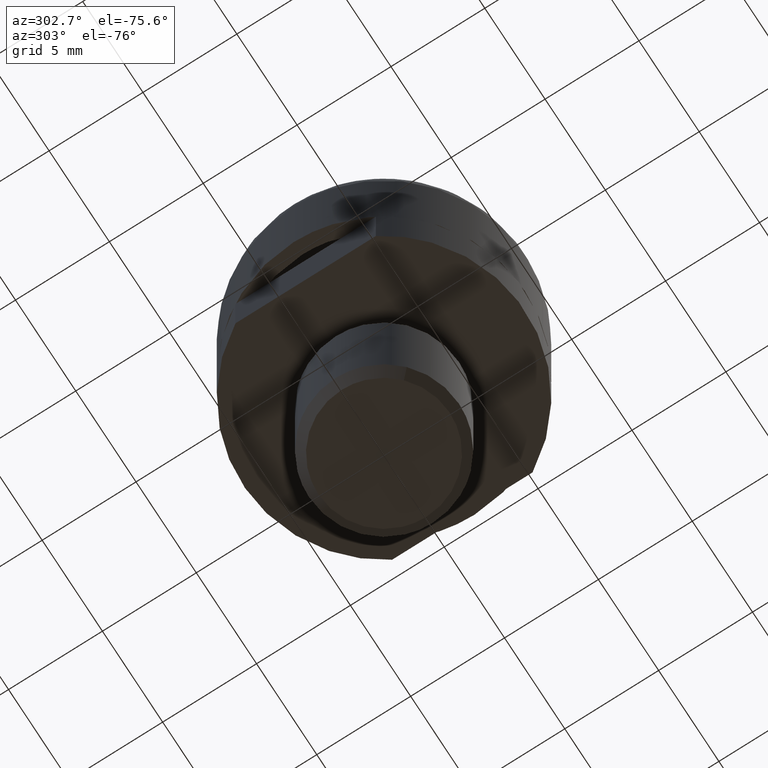
[diagram: clean part render]
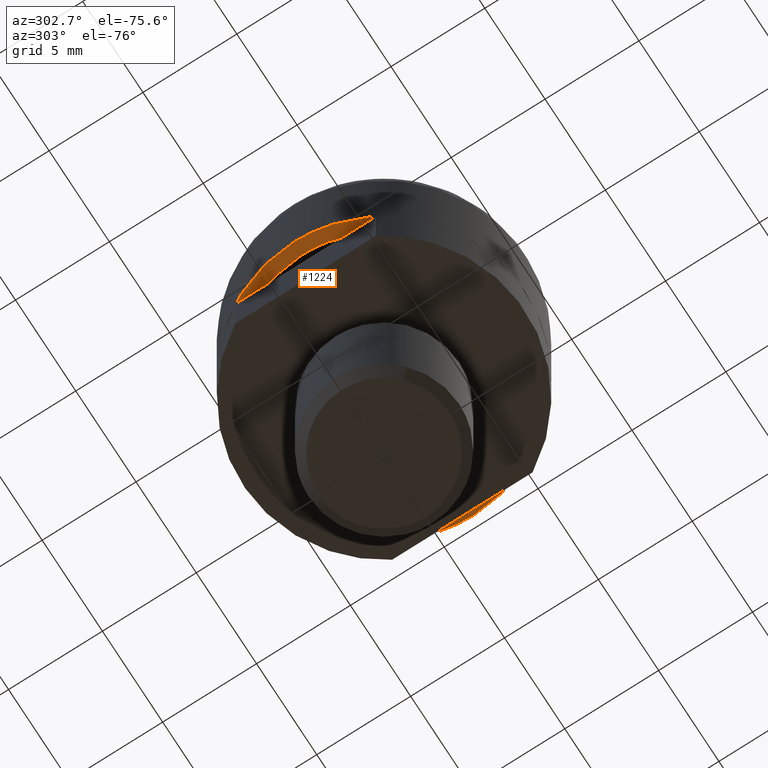
[diagram: same view with one face highlighted and labeled with its STEP entity id]
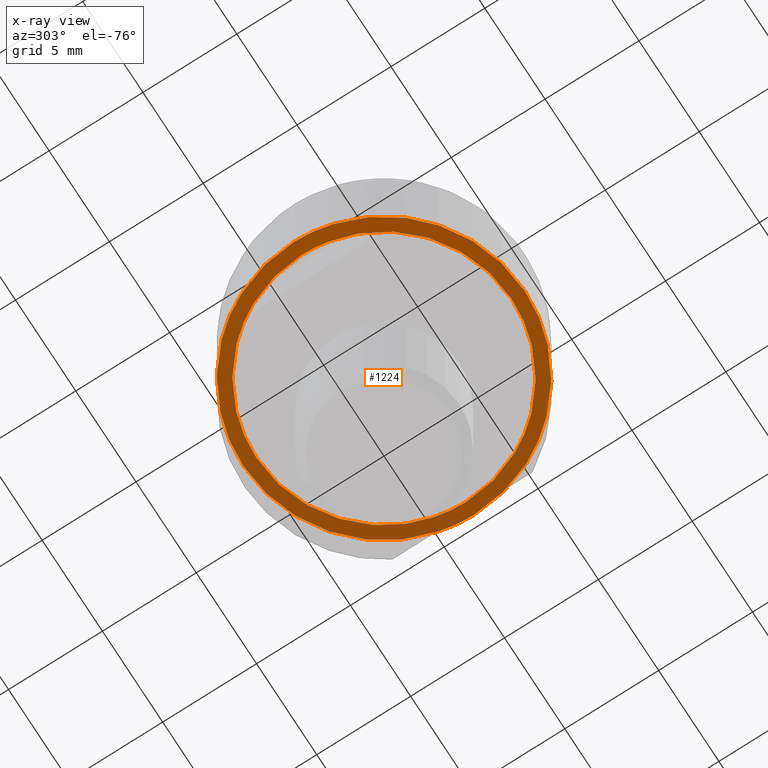
[diagram: x-ray of the same camera — body ghosted, the highlighted face saturated]
A machine part, auxiliary view. The second image highlights one B-rep face of the part: STEP entity #1224.
The next image is the same camera in x-ray: the body ghosted, the highlighted face saturated — about 58% of this face is hidden behind the body in this view.
In plain terms, the highlighted face is a freeform B-spline surface patch.
Its self-contained STEP definition (entity closure, byte-faithful):
#914=CARTESIAN_POINT('',(-4.932545653128287,4.680811062695243,6.106227E-016));
#915=VERTEX_POINT('',#914);
#921=CARTESIAN_POINT('',(0.000000346108168,6.799999999999991,0.0));
#922=VERTEX_POINT('',#921);
#923=CARTESIAN_POINT('',(-4.932545653128287,4.680811062695243,6.106227E-016));
#924=CARTESIAN_POINT('',(-4.714911238578774,4.910164587141207,5.836807E-016));
#925=CARTESIAN_POINT('',(-4.194477624714462,5.387118475183688,5.192538E-016));
#926=CARTESIAN_POINT('',(-3.281434101073893,5.993856287814997,4.062239E-016));
#927=CARTESIAN_POINT('',(-2.344349126094568,6.407035545751152,2.902179E-016));
#928=CARTESIAN_POINT('',(-1.250298053465714,6.716675281615692,1.547802E-016));
#929=CARTESIAN_POINT('',(-0.503020731464357,6.800094794695920,6.227131E-017));
#930=CARTESIAN_POINT('',(0.000000346108168,6.799999999999991,0.0));
#931=B_SPLINE_CURVE_WITH_KNOTS('',3,(#923,#924,#925,#926,#927,#928,#929,#930),.UNSPECIFIED.,.F.,.U.,(4,1,1,1,1,4),(4.989769E-009,0.948531342661251,2.112646577482514,3.276747887407414,4.009709380757420,5.518740639620351),.UNSPECIFIED.);
#932=EDGE_CURVE('',#915,#922,#931,.T.);
#934=CARTESIAN_POINT('',(6.800000000000000,0.0,0.0));
#935=VERTEX_POINT('',#934);
#936=CARTESIAN_POINT('',(0.000000346108168,6.799999999999991,0.0));
#937=CARTESIAN_POINT('',(0.486793476752022,6.800089300988016,0.0));
#938=CARTESIAN_POINT('',(1.182155557773810,6.724991764339060,0.0));
#939=CARTESIAN_POINT('',(2.177615906254665,6.459343039238324,0.0));
#940=CARTESIAN_POINT('',(2.967494211508239,6.143469622289882,0.0));
#941=CARTESIAN_POINT('',(3.728938201835061,5.705910147002482,0.0));
#942=CARTESIAN_POINT('',(4.465558441262036,5.156103281038001,0.0));
#943=CARTESIAN_POINT('',(5.132792216378698,4.501050107620703,0.0));
#944=CARTESIAN_POINT('',(5.649851803603016,3.808288723322289,0.0));
#945=CARTESIAN_POINT('',(6.081844010767988,3.077438891601866,0.0));
#946=CARTESIAN_POINT('',(6.421095031546538,2.312117377541458,0.0));
#947=CARTESIAN_POINT('',(6.722234229439530,1.223884615989107,0.0));
#948=CARTESIAN_POINT('',(6.800072917927754,0.458973095662073,0.0));
#949=CARTESIAN_POINT('',(6.800000000000000,0.0,0.0));
#950=B_SPLINE_CURVE_WITH_KNOTS('',3,(#936,#937,#938,#939,#940,#941,#942,#943,#944,#945,#946,#947,#948,#949),.UNSPECIFIED.,.F.,.U.,(4,1,1,1,1,1,1,1,1,1,1,4),(0.000000017252752,1.460351777805538,2.086214830009544,3.087603346065093,4.005542566902605,4.714860688398960,5.841397593927717,6.801062946901503,7.301756254030367,8.386593579473956,9.304530785421234,10.681431583172801),.UNSPECIFIED.);
#951=EDGE_CURVE('',#922,#935,#950,.T.);
#953=CARTESIAN_POINT('',(4.932545653128331,-4.680811062695286,-1.387779E-016));
#954=VERTEX_POINT('',#953);
#955=CARTESIAN_POINT('',(6.800000000000000,0.0,0.0));
#956=CARTESIAN_POINT('',(6.800021108686694,-0.349557190225393,-1.036376E-017));
#957=CARTESIAN_POINT('',(6.751163331616947,-0.981442221421686,-2.909805E-017));
#958=CARTESIAN_POINT('',(6.531276637875400,-1.981318662102709,-5.874264E-017));
#959=CARTESIAN_POINT('',(6.194287959516104,-2.863756279305638,-8.490538E-017));
#960=CARTESIAN_POINT('',(5.661622801698501,-3.815800534187392,-1.131318E-016));
#961=CARTESIAN_POINT('',(5.228730014447083,-4.368768389962196,-1.295264E-016));
#962=CARTESIAN_POINT('',(4.932545653128331,-4.680811062695286,-1.387779E-016));
#963=B_SPLINE_CURVE_WITH_KNOTS('',3,(#955,#956,#957,#958,#959,#960,#961,#962),.UNSPECIFIED.,.F.,.U.,(4,1,1,1,1,4),(4.128117E-009,1.048670904433243,1.895678721432939,3.065346830914816,3.872018606578894,5.162691472718698),.UNSPECIFIED.);
#964=EDGE_CURVE('',#935,#954,#963,.T.);
#1069=CARTESIAN_POINT('',(-0.000000346107925,-6.799999999999991,0.0));
#1070=VERTEX_POINT('',#1069);
#1071=CARTESIAN_POINT('',(4.932545653128331,-4.680811062695286,-1.387779E-016));
#1072=CARTESIAN_POINT('',(4.675350328049555,-4.951876274555596,-1.315417E-016));
#1073=CARTESIAN_POINT('',(4.191391869792840,-5.384180143413056,-1.179254E-016));
#1074=CARTESIAN_POINT('',(3.339981835388632,-5.949944837420920,-9.397087E-017));
#1075=CARTESIAN_POINT('',(2.532536665208507,-6.333865440702996,-7.125329E-017));
#1076=CARTESIAN_POINT('',(1.654611420056585,-6.612664250554663,-4.655274E-017));
#1077=CARTESIAN_POINT('',(0.847928270817524,-6.765331402376738,-2.385659E-017));
#1078=CARTESIAN_POINT('',(0.273061171802198,-6.800006979440302,-7.682625E-018));
#1079=CARTESIAN_POINT('',(-0.000000346107925,-6.799999999999991,0.0));
#1080=B_SPLINE_CURVE_WITH_KNOTS('',3,(#1071,#1072,#1073,#1074,#1075,#1076,#1077,#1078,#1079),.UNSPECIFIED.,.F.,.U.,(4,1,1,1,1,1,4),(4.990400E-009,1.120993125241676,1.940184957947762,3.061175295996719,3.794133479032885,4.699555275262692,5.518740639620137),.UNSPECIFIED.);
#1081=EDGE_CURVE('',#954,#1070,#1080,.T.);
#1083=CARTESIAN_POINT('',(-6.800000000000000,0.0,0.0));
#1084=VERTEX_POINT('',#1083);
#1085=CARTESIAN_POINT('',(-0.000000346107925,-6.799999999999991,0.0));
#1086=CARTESIAN_POINT('',(-0.264253295287574,-6.800005109630086,0.0));
#1087=CARTESIAN_POINT('',(-0.834484349495559,-6.766725266151325,0.0));
#1088=CARTESIAN_POINT('',(-1.766381699345002,-6.593240135670996,0.0));
#1089=CARTESIAN_POINT('',(-2.649628072918165,-6.286352231618138,0.0));
#1090=CARTESIAN_POINT('',(-3.542671323212959,-5.829925771459218,0.0));
#1091=CARTESIAN_POINT('',(-4.263061842803582,-5.325892526173761,0.0));
#1092=CARTESIAN_POINT('',(-4.895773229201363,-4.738084367721295,0.0));
#1093=CARTESIAN_POINT('',(-5.406996640866277,-4.149099940268994,0.0));
#1094=CARTESIAN_POINT('',(-5.956507571026452,-3.342977865516843,0.0));
#1095=CARTESIAN_POINT('',(-6.410602268097167,-2.367393965233647,0.0));
#1096=CARTESIAN_POINT('',(-6.726994644023757,-1.196076952669076,0.0));
#1097=CARTESIAN_POINT('',(-6.800049776455971,-0.431151375849378,0.0));
#1098=CARTESIAN_POINT('',(-6.800000000000000,0.0,0.0));
#1099=B_SPLINE_CURVE_WITH_KNOTS('',3,(#1085,#1086,#1087,#1088,#1089,#1090,#1091,#1092,#1093,#1094,#1095,#1096,#1097,#1098),.UNSPECIFIED.,.F.,.U.,(4,1,1,1,1,1,1,1,1,1,1,4),(0.000000017250334,0.792760695361860,1.710695997795387,2.837256184273915,3.588296048636992,4.714860688398837,5.465883930775761,6.175201046817531,7.051409268338403,8.386593579474088,9.387983965105581,10.681431583172939),.UNSPECIFIED.);
#1100=EDGE_CURVE('',#1070,#1084,#1099,.T.);
#1102=CARTESIAN_POINT('',(-6.800000000000000,0.0,0.0));
#1103=CARTESIAN_POINT('',(-6.800033560566271,0.389891795505131,5.086229E-017));
#1104=CARTESIAN_POINT('',(-6.739704022644285,1.088995564577597,1.420620E-016));
#1105=CARTESIAN_POINT('',(-6.508856797246106,2.031389033351292,2.649994E-016));
#1106=CARTESIAN_POINT('',(-6.198967786110909,2.835719514198106,3.699262E-016));
#1107=CARTESIAN_POINT('',(-5.717763245139065,3.739346199293150,4.878064E-016));
#1108=CARTESIAN_POINT('',(-5.256519562651302,4.339530560689180,5.661018E-016));
#1109=CARTESIAN_POINT('',(-4.932545653128287,4.680811062695243,6.106227E-016));
#1110=B_SPLINE_CURVE_WITH_KNOTS('',3,(#1102,#1103,#1104,#1105,#1106,#1107,#1108,#1109),.UNSPECIFIED.,.F.,.U.,(4,1,1,1,1,4),(4.126776E-009,1.169671911641744,2.097345429614210,2.904009466927756,3.751017432284564,5.162691472718671),.UNSPECIFIED.);
#1111=EDGE_CURVE('',#1084,#915,#1110,.T.);
#1117=CARTESIAN_POINT('',(-8.249249970927089,-8.249249970927080,0.0));
#1118=CARTESIAN_POINT('',(8.249250373258443,-8.249249970927080,0.0));
#1119=CARTESIAN_POINT('',(-8.249249970927089,8.249250373258434,0.0));
#1120=CARTESIAN_POINT('',(8.249250373258443,8.249250373258434,0.0));
#1121=B_SPLINE_SURFACE_WITH_KNOTS('',1,1,((#1117,#1119),(#1118,#1120)),.UNSPECIFIED.,.F.,.F.,.U.,(2,2),(2,2),(0.0,16.498500344185530),(0.0,16.498500344185519),.UNSPECIFIED.);
#1122=CARTESIAN_POINT('',(-7.500000000000000,0.0,0.0));
#1123=VERTEX_POINT('',#1122);
#1124=CARTESIAN_POINT('',(-5.440307722741464,5.162659260906362,3.260447E-013));
#1125=VERTEX_POINT('',#1124);
#1126=CARTESIAN_POINT('',(-7.500000000000000,0.0,0.0));
#1127=CARTESIAN_POINT('',(-7.500110563992562,0.563494880961439,3.558719E-014));
#1128=CARTESIAN_POINT('',(-7.407645597176170,1.379009436877009,8.709054E-014));
#1129=CARTESIAN_POINT('',(-7.100309793495333,2.464753881104168,1.556601E-013));
#1130=CARTESIAN_POINT('',(-6.773895971205700,3.262257911933458,2.060260E-013));
#1131=CARTESIAN_POINT('',(-6.244434162974746,4.208599703737512,2.657917E-013));
#1132=CARTESIAN_POINT('',(-5.766986201841205,4.818498032914584,3.043094E-013));
#1133=CARTESIAN_POINT('',(-5.440307722741464,5.162659260906362,3.260447E-013));
#1134=B_SPLINE_CURVE_WITH_KNOTS('',3,(#1126,#1127,#1128,#1129,#1130,#1131,#1132,#1133),.UNSPECIFIED.,.F.,.U.,(4,1,1,1,1,4),(3.950708E-009,1.690450371966135,2.446707136006656,3.380894656783597,4.270608751391107,5.694145000191788),.UNSPECIFIED.);
#1135=EDGE_CURVE('',#1123,#1125,#1134,.T.);
#1136=ORIENTED_EDGE('',*,*,#1135,.T.);
#1137=CARTESIAN_POINT('',(0.000000330494889,7.499999999999993,0.0));
#1138=VERTEX_POINT('',#1137);
#1139=CARTESIAN_POINT('',(-5.440307722741464,5.162659260906362,3.260447E-013));
#1140=CARTESIAN_POINT('',(-5.222090561764770,5.392626361892578,3.129667E-013));
#1141=CARTESIAN_POINT('',(-4.756433811510715,5.824825442814862,2.850593E-013));
#1142=CARTESIAN_POINT('',(-4.007410296107785,6.361113732606425,2.401693E-013));
#1143=CARTESIAN_POINT('',(-3.255371648264560,6.772807285650643,1.950987E-013));
#1144=CARTESIAN_POINT('',(-2.317090248235412,7.161976463842699,1.388663E-013));
#1145=CARTESIAN_POINT('',(-1.236393473926664,7.434767812609511,7.409869E-014));
#1146=CARTESIAN_POINT('',(-0.380425968350426,7.500012791603552,2.279944E-014));
#1147=CARTESIAN_POINT('',(0.000000330494889,7.499999999999993,0.0));
#1148=B_SPLINE_CURVE_WITH_KNOTS('',3,(#1139,#1140,#1141,#1142,#1143,#1144,#1145,#1146,#1147),.UNSPECIFIED.,.F.,.U.,(4,1,1,1,1,1,4),(4.373732E-009,0.951069366999060,1.902139811745134,2.758107686478077,3.518953328158676,4.945562716213861,6.086846258987378),.UNSPECIFIED.);
#1149=EDGE_CURVE('',#1125,#1138,#1148,.T.);
#1150=ORIENTED_EDGE('',*,*,#1149,.T.);
#1151=CARTESIAN_POINT('',(7.500000000000000,0.0,0.0));
#1152=VERTEX_POINT('',#1151);
#1153=CARTESIAN_POINT('',(0.000000330494889,7.499999999999993,0.0));
#1154=CARTESIAN_POINT('',(0.383496709175140,7.500023622442923,0.0));
#1155=CARTESIAN_POINT('',(1.119798394740377,7.443400189007258,0.0));
#1156=CARTESIAN_POINT('',(2.274347051570003,7.180447759328336,0.0));
#1157=CARTESIAN_POINT('',(3.302645239692076,6.765563218895495,0.0));
#1158=CARTESIAN_POINT('',(4.202292416290751,6.233753146761571,0.0));
#1159=CARTESIAN_POINT('',(5.056345892618646,5.579881452668780,0.0));
#1160=CARTESIAN_POINT('',(5.770517176362161,4.834340244074437,0.0));
#1161=CARTESIAN_POINT('',(6.401203447448755,3.944578211501772,0.0));
#1162=CARTESIAN_POINT('',(6.897006185018848,3.023879723870819,0.0));
#1163=CARTESIAN_POINT('',(7.238558996098638,2.050499457187854,0.0));
#1164=CARTESIAN_POINT('',(7.451647389917656,1.012417028787385,0.0));
#1165=CARTESIAN_POINT('',(7.500023757447852,0.383494025221179,0.0));
#1166=CARTESIAN_POINT('',(7.500000000000000,0.0,0.0));
#1167=B_SPLINE_CURVE_WITH_KNOTS('',3,(#1153,#1154,#1155,#1156,#1157,#1158,#1159,#1160,#1161,#1162,#1163,#1164,#1165,#1166),.UNSPECIFIED.,.F.,.U.,(4,1,1,1,1,1,1,1,1,1,1,4),(0.000000015615436,1.150486712149688,2.208932504260760,3.543503984994633,4.463891996932343,5.338262692139366,6.764865018881711,7.547191724661704,8.605645213579354,9.894191961173997,10.630511099233260,11.780990745615551),.UNSPECIFIED.);
#1168=EDGE_CURVE('',#1138,#1152,#1167,.T.);
#1169=ORIENTED_EDGE('',*,*,#1168,.T.);
#1170=CARTESIAN_POINT('',(5.440307722741471,-5.162659260906369,3.268080E-013));
#1171=VERTEX_POINT('',#1170);
#1172=CARTESIAN_POINT('',(7.500000000000000,0.0,0.0));
#1173=CARTESIAN_POINT('',(7.500122419557545,-0.563496032813298,3.567058E-014));
#1174=CARTESIAN_POINT('',(7.407634825102002,-1.379008142941116,8.729434E-014));
#1175=CARTESIAN_POINT('',(7.100312988171392,-2.464754954329973,1.560246E-013));
#1176=CARTESIAN_POINT('',(6.807656769025325,-3.179752075338632,2.012855E-013));
#1177=CARTESIAN_POINT('',(6.295597698392805,-4.134524845700771,2.617248E-013));
#1178=CARTESIAN_POINT('',(5.828278105235961,-4.753994726167655,3.009386E-013));
#1179=CARTESIAN_POINT('',(5.440307722741471,-5.162659260906369,3.268080E-013));
#1180=B_SPLINE_CURVE_WITH_KNOTS('',3,(#1172,#1173,#1174,#1175,#1176,#1177,#1178,#1179),.UNSPECIFIED.,.F.,.U.,(4,1,1,1,1,4),(3.949342E-009,1.690450371965243,2.446707136006002,3.380894656783160,4.003694742534659,5.694145000191803),.UNSPECIFIED.);
#1181=EDGE_CURVE('',#1152,#1171,#1180,.T.);
#1182=ORIENTED_EDGE('',*,*,#1181,.T.);
#1183=CARTESIAN_POINT('',(-0.000000330494848,-7.499999999999993,0.0));
#1184=VERTEX_POINT('',#1183);
#1185=CARTESIAN_POINT('',(5.440307722741471,-5.162659260906369,3.268080E-013));
#1186=CARTESIAN_POINT('',(5.102100937895207,-5.519143678668121,3.064914E-013));
#1187=CARTESIAN_POINT('',(4.523896734643098,-6.019323521930130,2.717577E-013));
#1188=CARTESIAN_POINT('',(3.623407609354914,-6.585279048003963,2.176639E-013));
#1189=CARTESIAN_POINT('',(2.921745507856319,-6.921630120890884,1.755140E-013));
#1190=CARTESIAN_POINT('',(2.145551227294638,-7.201061089340384,1.288867E-013));
#1191=CARTESIAN_POINT('',(1.204673662511206,-7.432253383925799,7.236670E-014));
#1192=CARTESIAN_POINT('',(0.443834554357933,-7.500046012676502,2.666187E-014));
#1193=CARTESIAN_POINT('',(-0.000000330494848,-7.499999999999993,0.0));
#1194=B_SPLINE_CURVE_WITH_KNOTS('',3,(#1185,#1186,#1187,#1188,#1189,#1190,#1191,#1192,#1193),.UNSPECIFIED.,.F.,.U.,(4,1,1,1,1,1,4),(4.375893E-009,1.474157996963418,2.282568049865966,3.186078874151449,3.804278504211309,4.755348675329007,6.086846258987329),.UNSPECIFIED.);
#1195=EDGE_CURVE('',#1171,#1184,#1194,.T.);
#1196=ORIENTED_EDGE('',*,*,#1195,.T.);
#1197=CARTESIAN_POINT('',(-0.000000330494848,-7.499999999999993,0.0));
#1198=CARTESIAN_POINT('',(-0.444855551938680,-7.500039166809961,0.0));
#1199=CARTESIAN_POINT('',(-1.242513399961697,-7.428822787050820,0.0));
#1200=CARTESIAN_POINT('',(-2.285903906502018,-7.164046147298337,0.0));
#1201=CARTESIAN_POINT('',(-3.158177075585810,-6.821402705086491,0.0));
#1202=CARTESIAN_POINT('',(-4.052760787448254,-6.343272047723509,0.0));
#1203=CARTESIAN_POINT('',(-4.943153239627747,-5.682918981085284,0.0));
#1204=CARTESIAN_POINT('',(-5.824001829136691,-4.780176677269982,0.0));
#1205=CARTESIAN_POINT('',(-6.501061636965524,-3.806224067609032,0.0));
#1206=CARTESIAN_POINT('',(-6.964246328449899,-2.834497628065326,0.0));
#1207=CARTESIAN_POINT('',(-7.260899538073105,-1.945694291867302,0.0));
#1208=CARTESIAN_POINT('',(-7.452288016354610,-1.027762177019846,0.0));
#1209=CARTESIAN_POINT('',(-7.500014063385033,-0.352815618898057,0.0));
#1210=CARTESIAN_POINT('',(-7.500000000000000,0.0,0.0));
#1211=B_SPLINE_CURVE_WITH_KNOTS('',3,(#1197,#1198,#1199,#1200,#1201,#1202,#1203,#1204,#1205,#1206,#1207,#1208,#1209,#1210),.UNSPECIFIED.,.F.,.U.,(4,1,1,1,1,1,1,1,1,1,1,4),(0.000000015630228,1.334562875300023,2.393011660832899,3.221366046658526,4.141756290560739,5.430311149035902,6.534758987802961,7.915351142389698,8.973802105755388,9.756134984845527,10.722544399349090,11.780990745615510),.UNSPECIFIED.);
#1212=EDGE_CURVE('',#1184,#1123,#1211,.T.);
#1213=ORIENTED_EDGE('',*,*,#1212,.T.);
#1214=EDGE_LOOP('',(#1136,#1150,#1169,#1182,#1196,#1213));
#1215=FACE_OUTER_BOUND('',#1214,.T.);
#1216=ORIENTED_EDGE('',*,*,#951,.F.);
#1217=ORIENTED_EDGE('',*,*,#932,.F.);
#1218=ORIENTED_EDGE('',*,*,#1111,.F.);
#1219=ORIENTED_EDGE('',*,*,#1100,.F.);
#1220=ORIENTED_EDGE('',*,*,#1081,.F.);
#1221=ORIENTED_EDGE('',*,*,#964,.F.);
#1222=EDGE_LOOP('',(#1216,#1217,#1218,#1219,#1220,#1221));
#1223=FACE_BOUND('',#1222,.T.);
#1224=ADVANCED_FACE('',(#1215,#1223),#1121,.F.);